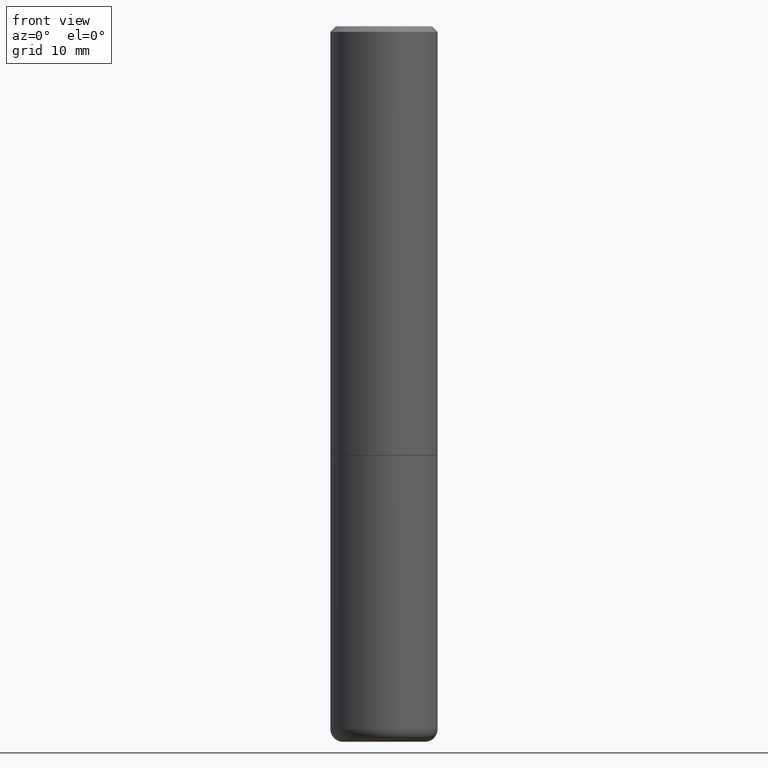
[diagram: clean part render]
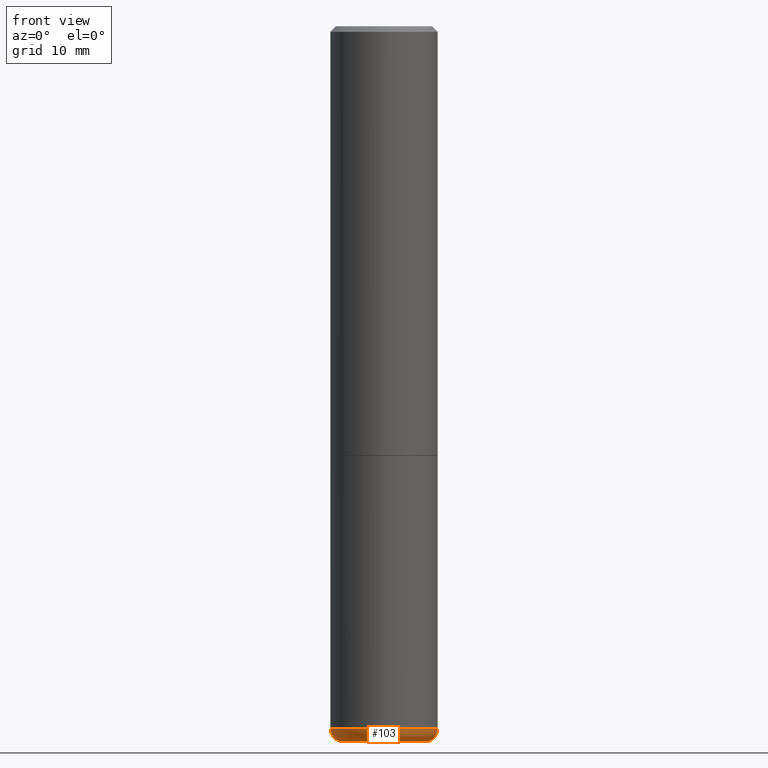
[diagram: same view with one face highlighted and labeled with its STEP entity id]
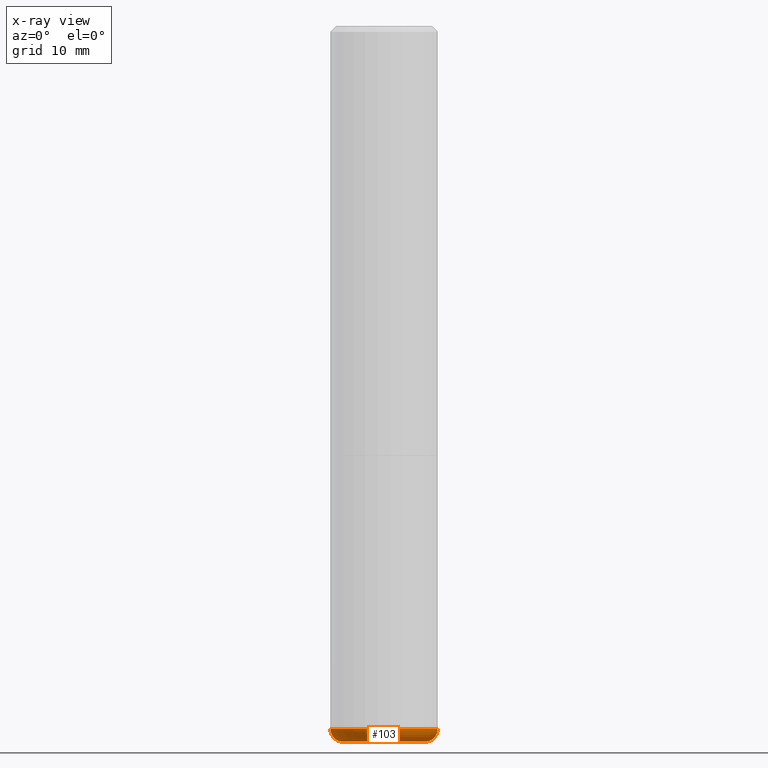
[diagram: x-ray of the same camera — body ghosted, the highlighted face saturated]
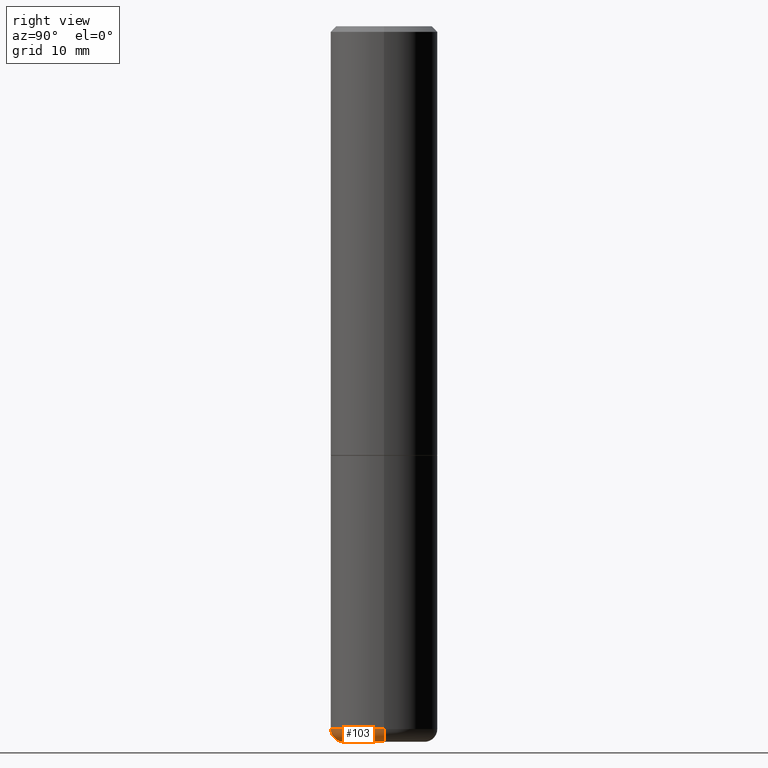
[diagram: same view with one face highlighted and labeled with its STEP entity id]
A machine part, front view. The second image highlights one B-rep face of the part: STEP entity #103.
The next image is the same camera in x-ray: the body ghosted, the highlighted face saturated — about 0% of this face is hidden behind the body in this view.
A second angle (right view) of the same face is appended — the face is thin or edge-on in the first view.
In plain terms, the highlighted toroidal blend (fillet) surface has major radius 3.6195 mm and minor (blend) radius 1.143 mm.
Its self-contained STEP definition (entity closure, byte-faithful):
#1 = DIRECTION ( 'NONE',  ( -1.000000000000000000, 7.105427357600993970E-15, 0.000000000000000000 ) ) ;
#10 = CARTESIAN_POINT ( 'NONE',  ( 0.1425000000000000433, -9.566874191352565154E-15, -2.455061670936044660 ) ) ;
#22 = CARTESIAN_POINT ( 'NONE',  ( -0.1874999999999997502, -5.572244379473309128E-15, -2.455061670936044660 ) ) ;
#27 = CIRCLE ( 'NONE', #183, 0.04499999999999970690 ) ;
#42 = CARTESIAN_POINT ( 'NONE',  ( -0.1425000000000000433, -7.559278611324128563E-15, -2.455061670936044660 ) ) ;
#70 = ORIENTED_EDGE ( 'NONE', *, *, #158, .T. ) ;
#72 = VERTEX_POINT ( 'NONE', #328 ) ;
#76 = DIRECTION ( 'NONE',  ( 7.105427357601001859E-15, 1.000000000000000000, -3.491481338843145583E-15 ) ) ;
#94 = DIRECTION ( 'NONE',  ( -2.445468806185136597E-29, 3.491481338843145583E-15, 1.000000000000000000 ) ) ;
#96 = FACE_OUTER_BOUND ( 'NONE', #382, .T. ) ;
#103 = ADVANCED_FACE ( 'NONE', ( #96 ), #119, .T. ) ;
#119 = TOROIDAL_SURFACE ( 'NONE', #277, 0.1425000000000000433, 0.04499999999999970690 ) ;
#125 = DIRECTION ( 'NONE',  ( 1.000000000000000000, -6.982962677686264344E-15, 0.000000000000000000 ) ) ;
#139 = CARTESIAN_POINT ( 'NONE',  ( 6.003776733534855624E-29, -8.571802009782271832E-15, -2.455061670936044660 ) ) ;
#158 = EDGE_CURVE ( 'NONE', #342, #303, #163, .T. ) ;
#163 = CIRCLE ( 'NONE', #166, 0.1401448819690678804 ) ;
#165 = EDGE_CURVE ( 'NONE', #243, #72, #405, .T. ) ;
#166 = AXIS2_PLACEMENT_3D ( 'NONE', #219, #248, #125 ) ;
#183 = AXIS2_PLACEMENT_3D ( 'NONE', #42, #76, #1 ) ;
#213 = CIRCLE ( 'NONE', #232, 0.04499999999999970690 ) ;
#216 = ORIENTED_EDGE ( 'NONE', *, *, #165, .F. ) ;
#219 = CARTESIAN_POINT ( 'NONE',  ( 6.113672015462842613E-29, -8.728703347107864943E-15, -2.500000000000000000 ) ) ;
#232 = AXIS2_PLACEMENT_3D ( 'NONE', #10, #279, #415 ) ;
#238 = ORIENTED_EDGE ( 'NONE', *, *, #404, .T. ) ;
#243 = VERTEX_POINT ( 'NONE', #22 ) ;
#248 = DIRECTION ( 'NONE',  ( -2.445468806185136597E-29, 3.491481338843145583E-15, 1.000000000000000000 ) ) ;
#277 = AXIS2_PLACEMENT_3D ( 'NONE', #347, #94, #355 ) ;
#279 = DIRECTION ( 'NONE',  ( -6.982962677686266711E-15, -1.000000000000000000, 3.491481338843145583E-15 ) ) ;
#293 = CARTESIAN_POINT ( 'NONE',  ( 0.1401448819690678804, -9.707329827366611843E-15, -2.500000000000000000 ) ) ;
#303 = VERTEX_POINT ( 'NONE', #293 ) ;
#328 = CARTESIAN_POINT ( 'NONE',  ( 0.1874999999999997502, -9.881107511848445263E-15, -2.455061670936044660 ) ) ;
#330 = AXIS2_PLACEMENT_3D ( 'NONE', #139, #428, #397 ) ;
#338 = ORIENTED_EDGE ( 'NONE', *, *, #353, .F. ) ;
#342 = VERTEX_POINT ( 'NONE', #376 ) ;
#347 = CARTESIAN_POINT ( 'NONE',  ( 6.003776733534855624E-29, -8.571802009782271832E-15, -2.455061670936044660 ) ) ;
#353 = EDGE_CURVE ( 'NONE', #342, #243, #27, .T. ) ;
#355 = DIRECTION ( 'NONE',  ( 1.000000000000000000, -6.982962677686267499E-15, 4.883557194083112901E-29 ) ) ;
#376 = CARTESIAN_POINT ( 'NONE',  ( -0.1401448819690679082, -7.486224224484587098E-15, -2.500000000000000000 ) ) ;
#382 = EDGE_LOOP ( 'NONE', ( #338, #70, #238, #216 ) ) ;
#397 = DIRECTION ( 'NONE',  ( 1.000000000000000000, -6.982962677686266711E-15, 0.000000000000000000 ) ) ;
#404 = EDGE_CURVE ( 'NONE', #303, #72, #213, .T. ) ;
#405 = CIRCLE ( 'NONE', #330, 0.1874999999999997502 ) ;
#415 = DIRECTION ( 'NONE',  ( 1.000000000000000000, -6.982962677686269866E-15, 0.000000000000000000 ) ) ;
#428 = DIRECTION ( 'NONE',  ( -2.445468806185136597E-29, 3.491481338843145583E-15, 1.000000000000000000 ) ) ;